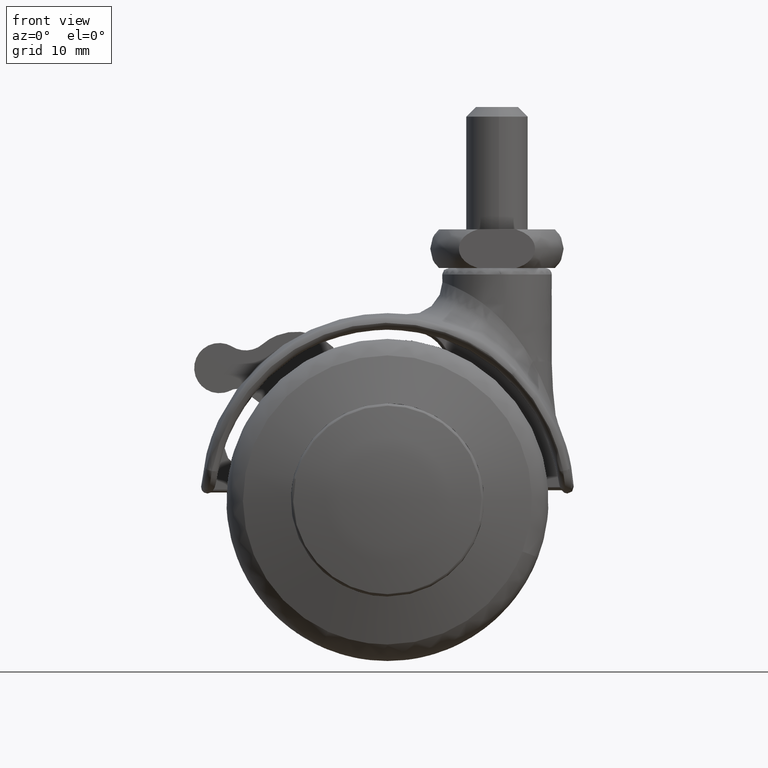
[diagram: clean part render]
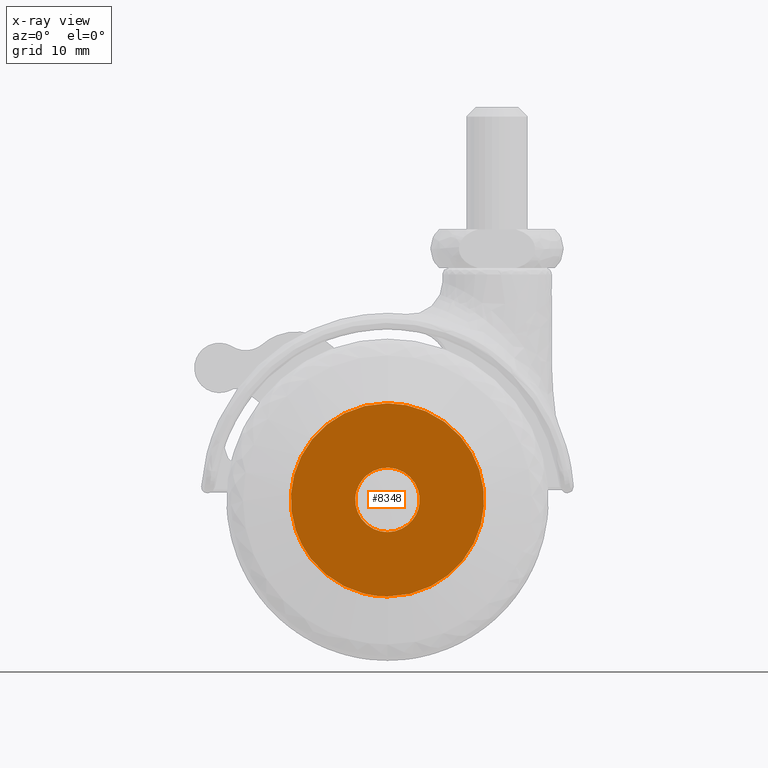
[diagram: x-ray — body ghosted, one internal face saturated and labeled with its STEP entity id]
A machine part, front view, then the same camera in x-ray: the body is ghosted and one INTERNAL B-rep face — a face not visible from any outside direction — is saturated and labeled: STEP entity #8348.
In plain terms, the highlighted face is a freeform B-spline surface patch.
Its self-contained STEP definition (entity closure, byte-faithful):
#5640=CARTESIAN_POINT('',(11.358576312406850,-17.750000000000000,9.797078347916905));
#5641=VERTEX_POINT('',#5640);
#5647=CARTESIAN_POINT('',(0.0,-17.750000000000000,15.0));
#5648=VERTEX_POINT('',#5647);
#5649=CARTESIAN_POINT('',(11.358576312406850,-17.750000000000004,9.797078347916905));
#5650=CARTESIAN_POINT('',(6.870916093242786,-17.749999999999996,15.0));
#5651=CARTESIAN_POINT('',(0.0,-17.750000000000000,15.0));
#5659=(BOUNDED_CURVE()B_SPLINE_CURVE(2,(#5649,#5650,#5651),.UNSPECIFIED.,.F.,.U.)B_SPLINE_CURVE_WITH_KNOTS((3,3),(0.363878064771786,0.500000000000000),.UNSPECIFIED.)CURVE()GEOMETRIC_REPRESENTATION_ITEM()RATIONAL_B_SPLINE_CURVE((0.854712755146998,0.840523232959569,1.0))REPRESENTATION_ITEM(''));
#5660=EDGE_CURVE('',#5641,#5648,#5659,.T.);
#5662=CARTESIAN_POINT('',(-11.900301845252891,-17.750000000000000,-9.131419166365244));
#5663=VERTEX_POINT('',#5662);
#5664=CARTESIAN_POINT('',(0.0,-17.750000000000000,15.0));
#5665=CARTESIAN_POINT('',(-14.999999999999996,-17.750000000000004,14.999999999999996));
#5666=CARTESIAN_POINT('',(-15.0,-17.750000000000000,-1.776357E-015));
#5667=CARTESIAN_POINT('',(-15.0,-17.750000000000000,-5.091812288331314));
#5668=CARTESIAN_POINT('',(-11.900301845252887,-17.750000000000007,-9.131419166365244));
#5676=(BOUNDED_CURVE()B_SPLINE_CURVE(2,(#5664,#5665,#5666,#5667,#5668),.UNSPECIFIED.,.F.,.U.)B_SPLINE_CURVE_WITH_KNOTS((3,2,3),(0.500000000000000,0.750000000000000,0.855220481503219),.UNSPECIFIED.)CURVE()GEOMETRIC_REPRESENTATION_ITEM()RATIONAL_B_SPLINE_CURVE((1.0,0.707106781186547,1.0,0.876726537949684,0.857220220167392))REPRESENTATION_ITEM(''));
#5677=EDGE_CURVE('',#5648,#5663,#5676,.T.);
#5787=CARTESIAN_POINT('',(0.0,-17.750000000000000,-15.0));
#5788=VERTEX_POINT('',#5787);
#5789=CARTESIAN_POINT('',(-11.900301845252887,-17.750000000000007,-9.131419166365244));
#5790=CARTESIAN_POINT('',(-7.397183168058252,-17.750000000000007,-15.000000000000011));
#5791=CARTESIAN_POINT('',(0.0,-17.750000000000000,-15.0));
#5799=(BOUNDED_CURVE()B_SPLINE_CURVE(2,(#5789,#5790,#5791),.UNSPECIFIED.,.F.,.U.)B_SPLINE_CURVE_WITH_KNOTS((3,3),(0.855220481503219,1.0),.UNSPECIFIED.)CURVE()GEOMETRIC_REPRESENTATION_ITEM()RATIONAL_B_SPLINE_CURVE((0.857220220167392,0.830380243236863,1.0))REPRESENTATION_ITEM(''));
#5800=EDGE_CURVE('',#5663,#5788,#5799,.T.);
#5802=CARTESIAN_POINT('',(0.0,-17.750000000000000,-15.0));
#5803=CARTESIAN_POINT('',(14.999999999999996,-17.750000000000004,-15.000000000000012));
#5804=CARTESIAN_POINT('',(15.0,-17.750000000000000,-1.776357E-015));
#5805=CARTESIAN_POINT('',(14.999999999999998,-17.749999999999996,5.575269827816287));
#5806=CARTESIAN_POINT('',(11.358576312406850,-17.750000000000004,9.797078347916905));
#5814=(BOUNDED_CURVE()B_SPLINE_CURVE(2,(#5802,#5803,#5804,#5805,#5806),.UNSPECIFIED.,.F.,.U.)B_SPLINE_CURVE_WITH_KNOTS((3,2,3),(0.0,0.250000000000000,0.363878064771786),.UNSPECIFIED.)CURVE()GEOMETRIC_REPRESENTATION_ITEM()RATIONAL_B_SPLINE_CURVE((1.0,0.707106781186547,1.0,0.866583548226979,0.854712755146998))REPRESENTATION_ITEM(''));
#5815=EDGE_CURVE('',#5788,#5641,#5814,.T.);
#5843=CARTESIAN_POINT('',(4.965047631804149,-17.750000000000000,-0.590171173403106));
#5844=VERTEX_POINT('',#5843);
#5845=CARTESIAN_POINT('',(0.0,-17.750000000000000,4.999999999999998));
#5846=VERTEX_POINT('',#5845);
#5847=CARTESIAN_POINT('',(4.965047631804149,-17.749999999999993,-0.590171173403106));
#5848=CARTESIAN_POINT('',(5.000000000000001,-17.750000000000000,-0.296120598380126));
#5849=CARTESIAN_POINT('',(5.0,-17.750000000000000,-1.776357E-015));
#5850=CARTESIAN_POINT('',(5.000000000000001,-17.750000000000000,4.999999999999997));
#5851=CARTESIAN_POINT('',(0.0,-17.750000000000000,4.999999999999998));
#5859=(BOUNDED_CURVE()B_SPLINE_CURVE(2,(#5847,#5848,#5849,#5850,#5851),.UNSPECIFIED.,.F.,.U.)B_SPLINE_CURVE_WITH_KNOTS((3,2,3),(0.229562473507522,0.250000000000000,0.500000000000000),.UNSPECIFIED.)CURVE()GEOMETRIC_REPRESENTATION_ITEM()RATIONAL_B_SPLINE_CURVE((0.956026754171965,0.976055948324131,1.0,0.707106781186548,1.0))REPRESENTATION_ITEM(''));
#5860=EDGE_CURVE('',#5844,#5846,#5859,.T.);
#5901=CARTESIAN_POINT('',(-4.990673994376790,-17.750000000000000,0.305242660601694));
#5902=VERTEX_POINT('',#5901);
#5908=CARTESIAN_POINT('',(0.0,-17.750000000000000,4.999999999999998));
#5909=CARTESIAN_POINT('',(-4.703530404538212,-17.749999999999993,4.999999999999998));
#5910=CARTESIAN_POINT('',(-4.990673994376790,-17.750000000000000,0.305242660601694));
#5918=(BOUNDED_CURVE()B_SPLINE_CURVE(2,(#5908,#5909,#5910),.UNSPECIFIED.,.F.,.U.)B_SPLINE_CURVE_WITH_KNOTS((3,3),(0.500000000000000,0.739332964805452),.UNSPECIFIED.)CURVE()GEOMETRIC_REPRESENTATION_ITEM()RATIONAL_B_SPLINE_CURVE((1.0,0.719603990279858,0.976072047167236))REPRESENTATION_ITEM(''));
#5919=EDGE_CURVE('',#5846,#5902,#5918,.T.);
#5942=CARTESIAN_POINT('',(0.0,-17.750000000000000,-5.000000000000002));
#5943=VERTEX_POINT('',#5942);
#5944=CARTESIAN_POINT('',(0.0,-17.750000000000000,-5.000000000000002));
#5945=CARTESIAN_POINT('',(4.440872629541904,-17.750000000000004,-5.000000000000002));
#5946=CARTESIAN_POINT('',(4.965047631804149,-17.750000000000000,-0.590171173403106));
#5954=(BOUNDED_CURVE()B_SPLINE_CURVE(2,(#5944,#5945,#5946),.UNSPECIFIED.,.F.,.U.)B_SPLINE_CURVE_WITH_KNOTS((3,3),(0.0,0.229562473507522),.UNSPECIFIED.)CURVE()GEOMETRIC_REPRESENTATION_ITEM()RATIONAL_B_SPLINE_CURVE((1.0,0.731050832862416,0.956026754171966))REPRESENTATION_ITEM(''));
#5955=EDGE_CURVE('',#5943,#5844,#5954,.T.);
#5957=CARTESIAN_POINT('',(-4.990673994376790,-17.749999999999996,0.305242660601694));
#5958=CARTESIAN_POINT('',(-4.999999999999999,-17.750000000000000,0.152763779316406));
#5959=CARTESIAN_POINT('',(-5.0,-17.750000000000000,-1.776357E-015));
#5960=CARTESIAN_POINT('',(-5.000000000000001,-17.750000000000000,-5.000000000000002));
#5961=CARTESIAN_POINT('',(0.0,-17.750000000000000,-5.000000000000002));
#5969=(BOUNDED_CURVE()B_SPLINE_CURVE(2,(#5957,#5958,#5959,#5960,#5961),.UNSPECIFIED.,.F.,.U.)B_SPLINE_CURVE_WITH_KNOTS((3,2,3),(0.739332964805452,0.750000000000000,1.0),.UNSPECIFIED.)CURVE()GEOMETRIC_REPRESENTATION_ITEM()RATIONAL_B_SPLINE_CURVE((0.976072047167236,0.987502790906690,1.0,0.707106781186548,1.0))REPRESENTATION_ITEM(''));
#5970=EDGE_CURVE('',#5902,#5943,#5969,.T.);
#8331=CARTESIAN_POINT('',(-16.496879942876060,-17.750000000000000,-16.498499941854181));
#8332=CARTESIAN_POINT('',(-16.496879942876060,-17.750000000000000,16.498500746516889));
#8333=CARTESIAN_POINT('',(16.492709644299701,-17.750000000000000,-16.498499941854181));
#8334=CARTESIAN_POINT('',(16.492709644299701,-17.750000000000000,16.498500746516889));
#8335=B_SPLINE_SURFACE_WITH_KNOTS('',1,1,((#8331,#8333),(#8332,#8334)),.UNSPECIFIED.,.F.,.F.,.U.,(2,2),(2,2),(0.0,32.997000688371060),(0.0,32.989589587175757),.UNSPECIFIED.);
#8336=ORIENTED_EDGE('',*,*,#5800,.F.);
#8337=ORIENTED_EDGE('',*,*,#5677,.F.);
#8338=ORIENTED_EDGE('',*,*,#5660,.F.);
#8339=ORIENTED_EDGE('',*,*,#5815,.F.);
#8340=EDGE_LOOP('',(#8336,#8337,#8338,#8339));
#8341=FACE_OUTER_BOUND('',#8340,.T.);
#8342=ORIENTED_EDGE('',*,*,#5919,.T.);
#8343=ORIENTED_EDGE('',*,*,#5970,.T.);
#8344=ORIENTED_EDGE('',*,*,#5955,.T.);
#8345=ORIENTED_EDGE('',*,*,#5860,.T.);
#8346=EDGE_LOOP('',(#8342,#8343,#8344,#8345));
#8347=FACE_BOUND('',#8346,.T.);
#8348=ADVANCED_FACE('',(#8341,#8347),#8335,.T.);